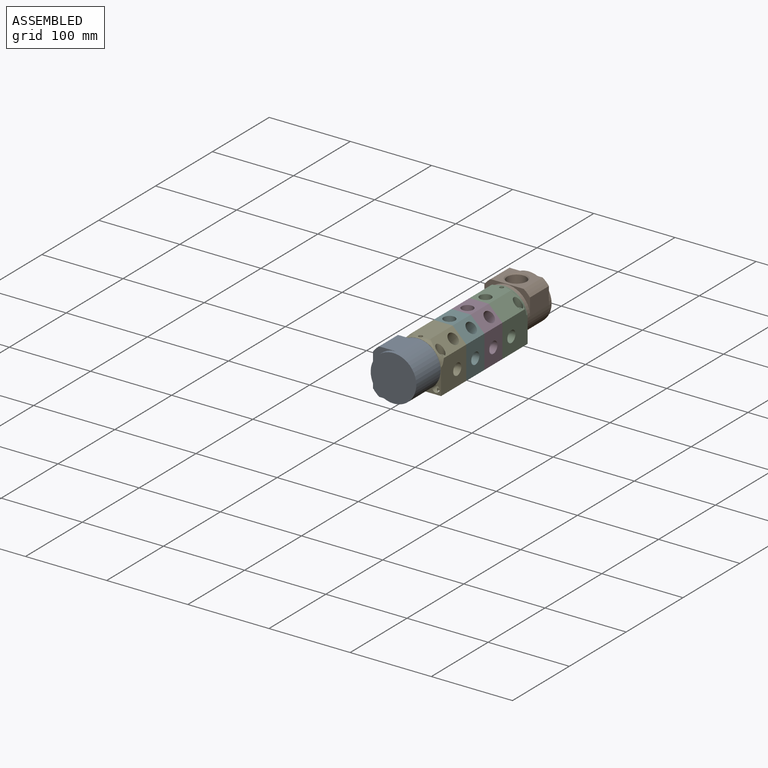
[diagram: assembled view]
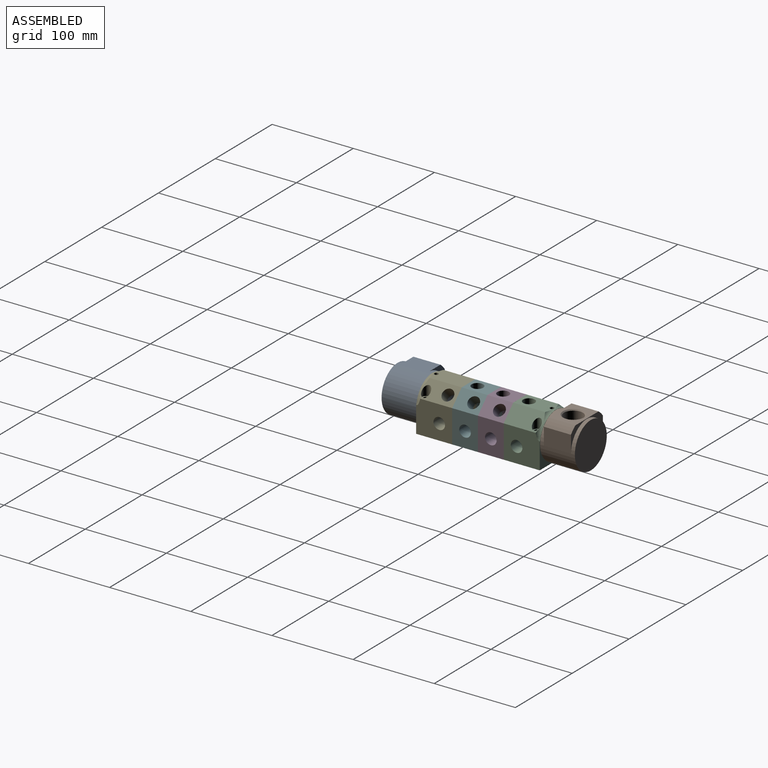
[diagram: assembled view, second angle]
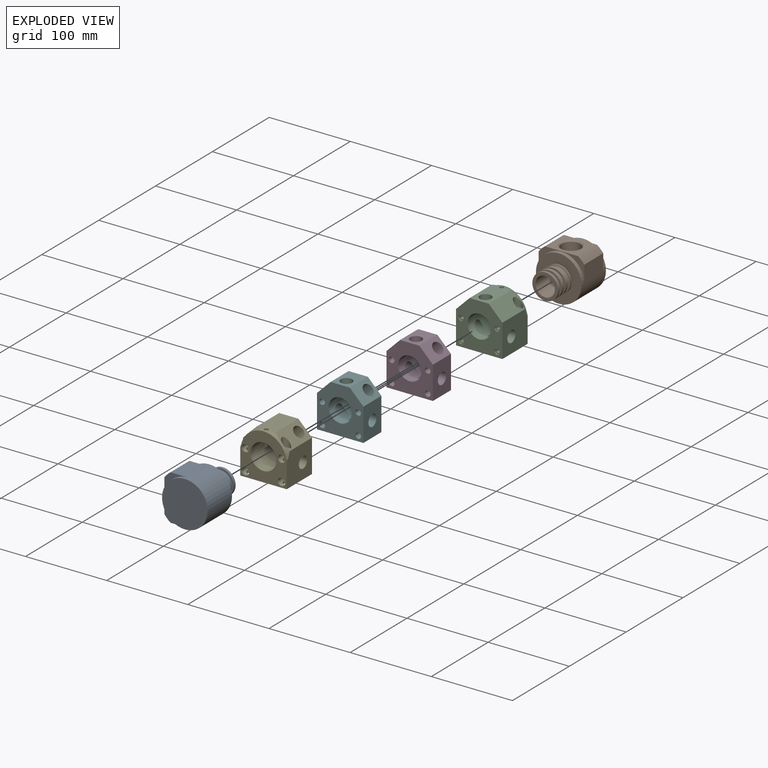
[diagram: exploded view]
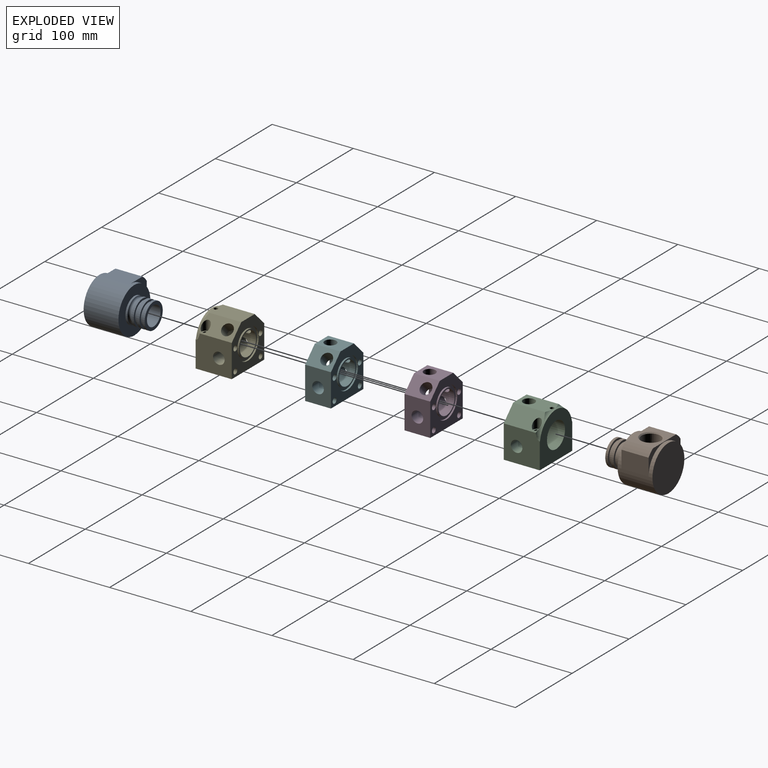
[diagram: exploded view, second angle]
ASSEMBLY  parts=6 mates=5
PART A: 28 faces, bbox 66.7x56.2x56.7 mm
  f0: cylinder r=14.29mm len=28.58mm, axis (0,0,-1), area 1674.9mm2, adj f1,f14,f18
  f1: cylinder r=11.91mm len=37.35mm, axis (1,0,0), area 2591.1mm2, adj f0,f6,f14
  f2: plane 31.75x31.75mm, normal (-1,0,0), area 218.1mm2, adj f5,f11
  f3: cylinder r=15.88mm len=31.75mm, axis (-1,0,0), area 316.7mm2, adj f4,f6
  f4: plane 31.75x31.75mm, normal (1,0,0), area 218.1mm2, adj f3,f5
  f5: cylinder r=13.51mm len=27.03mm, axis (1,0,0), area 269.6mm2, adj f2,f4
  f6: plane 31.75x31.75mm, normal (-1,0,0), area 346.4mm2, adj f1,f3
  f7: cylinder r=15.88mm len=31.75mm, axis (-1,0,0), area 316.7mm2, adj f10,f23
  f8: cylinder r=13.51mm len=27.03mm, axis (1,0,0), area 269.6mm2, adj f9,f10
  f9: plane 31.75x31.75mm, normal (1,0,0), area 218.1mm2, adj f8,f11
  f10: plane 31.75x31.75mm, normal (-1,0,0), area 218.1mm2, adj f7,f8
  f11: cylinder r=15.88mm len=31.75mm, axis (-1,0,0), area 395.9mm2, adj f2,f9
  f12: plane 56.2x56.2mm, normal (-1,0,0), area 1688.7mm2, adj f21,f22
  f13: cone r=14.83mm half-angle=45.9deg, axis (0,0,1), area 252.6mm2, adj f14,f15
  f14: cone r=14.29mm half-angle=1.8deg, axis (0,0,1), area 1577.2mm2, adj f0,f1,f13
  f15: plane 40.85x33.34mm, normal (0,0,1), area 489.8mm2, adj f13,f19,f20,f26,f27
  f16: plane 29.11x0.02mm, normal (0,0,-1), area 0.6mm2, adj f21
  f17: plane 56.2x56.2mm, normal (1,0,0), area 2480.4mm2, adj f21
  f18: plane 28.58x28.58mm, normal (0,0,1), area 641.3mm2, adj f0
  f19: cylinder r=35.12mm len=33.34mm, axis (-1,0,0), area 359.2mm2, adj f15,f24,f26,f27
  f20: cylinder r=35.12mm len=33.34mm, axis (-1,0,0), area 359.2mm2, adj f15,f25,f26,f27
  f21: cylinder r=28.1mm len=56.2mm, axis (-1,0,0), area 4623.9mm2, adj f12,f16,f17,f24,f25,f26,f27
  f22: cylinder r=15.88mm len=31.75mm, axis (-1,0,0), area 237.5mm2, adj f12,f23
  f23: torus R=15.88mm, axis (-1,0,0), area 674.9mm2, adj f7,f22
  f24: plane 33.34x21.07mm, normal (0,-1,0), area 702.6mm2, adj f19,f21,f26,f27
  f25: plane 33.34x21.07mm, normal (0,1,0), area 702.6mm2, adj f20,f21,f26,f27
  f26: plane 56.2x28.58mm, normal (-1,0,0), area 314mm2, adj f15,f19,f20,f21,f24,f25
  f27: plane 56.2x28.58mm, normal (1,0,0), area 314mm2, adj f15,f19,f20,f21,f24,f25
PART B: 33 faces, bbox 66.7x56.2x56.7 mm
  f0: cylinder r=16.67mm len=23.82mm, axis (0,0,-1), area 17.4mm2, adj f1,f10
  f1: cylinder r=11.71mm len=23.42mm, axis (1,0,0), area 544.7mm2, adj f0,f2,f3,f6
  f2: plane 4.13x0.18mm, normal (-1,0,0), area 0.5mm2, adj f1,f6
  f3: plane 4.13x0.18mm, normal (-1,0,0), area 0.5mm2, adj f1,f6
  f4: cylinder r=14.29mm len=28.58mm, axis (0,0,-1), area 199.5mm2, adj f5,f7
  f5: plane 28.58x28.58mm, normal (0,0,1), area 641.3mm2, adj f4
  f6: cylinder r=11.71mm len=39.37mm, axis (0,0,-1), area 2402mm2, adj f1,f2,f3,f7,f32
  f7: plane 28.58x28.58mm, normal (0,0,-1), area 210.6mm2, adj f4,f6
  f8: torus R=15.88mm, axis (-1,0,0), area 674.9mm2, adj f9,f26
  f9: cylinder r=15.88mm len=31.75mm, axis (-1,0,0), area 237.5mm2, adj f8,f21
  f10: cylinder r=11.91mm len=28.58mm, axis (1,0,0), area 2137.7mm2, adj f0,f27
  f11: plane 33.34x21.07mm, normal (0,-1,0), area 702.6mm2, adj f13,f14,f15,f17
  f12: plane 33.34x21.07mm, normal (0,1,0), area 702.6mm2, adj f13,f14,f15,f16
  f13: plane 56.2x28.58mm, normal (-1,0,0), area 314mm2, adj f11,f12,f14,f16,f17,f20
  f14: cylinder r=28.1mm len=56.2mm, axis (-1,0,0), area 4623.9mm2, adj f11,f12,f13,f15,f18,f19,f21
  f15: plane 56.2x28.58mm, normal (1,0,0), area 314mm2, adj f11,f12,f14,f16,f17,f20
  f16: cylinder r=35.12mm len=33.34mm, axis (-1,0,0), area 359.2mm2, adj f12,f13,f15,f20
  f17: cylinder r=35.12mm len=33.34mm, axis (-1,0,0), area 359.2mm2, adj f11,f13,f15,f20
  f18: plane 56.2x56.2mm, normal (1,0,0), area 2480.4mm2, adj f14
  f19: plane 29.11x0.02mm, normal (0,0,-1), area 0.6mm2, adj f14
  f20: plane 40.85x33.34mm, normal (0,0,1), area 832.5mm2, adj f13,f15,f16,f17,f32
  f21: plane 56.2x56.2mm, normal (-1,0,0), area 1688.7mm2, adj f9,f14
  f22: cylinder r=15.88mm len=31.75mm, axis (-1,0,0), area 395.9mm2, adj f24,f28
  f23: plane 31.75x31.75mm, normal (-1,0,0), area 218.1mm2, adj f25,f26
  f24: plane 31.75x31.75mm, normal (1,0,0), area 218.1mm2, adj f22,f25
  f25: cylinder r=13.51mm len=27.03mm, axis (1,0,0), area 269.6mm2, adj f23,f24
  f26: cylinder r=15.88mm len=31.75mm, axis (-1,0,0), area 316.7mm2, adj f8,f23
  f27: plane 31.75x31.75mm, normal (-1,0,0), area 346.4mm2, adj f10,f31
  f28: plane 31.75x31.75mm, normal (-1,0,0), area 218.1mm2, adj f22,f29
  f29: cylinder r=13.51mm len=27.03mm, axis (1,0,0), area 269.6mm2, adj f28,f30
  f30: plane 31.75x31.75mm, normal (1,0,0), area 218.1mm2, adj f29,f31
  f31: cylinder r=15.88mm len=31.75mm, axis (-1,0,0), area 316.7mm2, adj f27,f30
  f32: cone r=11.71mm half-angle=45deg, axis (0,0,1), area 139.3mm2, adj f6,f20
PART C: 43 faces, bbox 75.4x46.6x68.3 mm
  f0: cylinder r=15.88mm len=31.75mm, axis (0,1,0), area 2380.4mm2, adj f1,f2,f11,f12,f13,f14,f15,f17
  f1: cone r=0mm half-angle=59deg, axis (0,1,0), area 9.7mm2, adj f0,f3,f13,f14
  f2: cone r=0mm half-angle=59deg, axis (0,1,0), area 99.6mm2, adj f0,f3,f12,f15
  f3: cylinder r=14.29mm len=28.58mm, axis (0,-1,0), area 1189.8mm2, adj f1,f2,f10,f12,f13,f14,f15,f16
  f4: plane 45.68x41.64mm, normal (-1,0,0), area 1606.1mm2, adj f5,f9,f10,f11,f15,f35,f36
  f5: plane 57.15x44.45mm, normal (0,0,-1), area 2468.6mm2, adj f4,f6,f10,f11,f37,f41
  f6: plane 45.68x41.64mm, normal (1,0,0), area 1606.1mm2, adj f5,f7,f10,f11,f12,f34,f35
  f7: plane 44.84x18.91mm, normal (0.71,0,0.71), area 857mm2, adj f6,f8,f10,f35,f40
  f8: plane 42.68x23.69mm, normal (0,0,1), area 795.5mm2, adj f7,f9,f10,f16,f17,f35
  f9: plane 42.68x16.74mm, normal (-0.71,0,0.71), area 857mm2, adj f4,f8,f10,f35,f39
  f10: plane 57.15x57.15mm, normal (0,-1,0), area 2206.6mm2, adj f3,f4,f5,f6,f7,f8,f9,f20
  f11: plane 57.15x56.9mm, normal (0,1,0), area 2104.5mm2, adj f0,f4,f5,f6,f34,f35,f36
  f12: cylinder r=7.14mm len=25.4mm, axis (1,0,0), area 839.4mm2, adj f0,f2,f3,f6,f13
  f13: cone r=0mm half-angle=59deg, axis (1,0,0), area 19.9mm2, adj f0,f1,f3,f12
  f14: cone r=0mm half-angle=59deg, axis (-1,0,0), area 19.9mm2, adj f0,f1,f3,f15
  f15: cylinder r=7.14mm len=25.4mm, axis (-1,0,0), area 839.5mm2, adj f0,f2,f3,f4,f14
  f16: cylinder r=7.14mm len=16.2mm, axis (0,0,1), area 682.8mm2, adj f3,f8
  f17: cylinder r=2.5mm len=12.9mm, axis (0,0,1), area 200.3mm2, adj f0,f8
  f18: cylinder r=2.02mm len=16.19mm, axis (0,-1,0), area 205.4mm2, adj f19,f21
  f19: plane 6.63x6.63mm, normal (0,-1,0), area 21.7mm2, adj f18,f20
  f20: cylinder r=3.31mm len=6.63mm, axis (0,-1,0), area 33.1mm2, adj f10,f19
  f21: cone r=0mm half-angle=59deg, axis (0,-1,0), area 14.9mm2, adj f18
  f22: cylinder r=2.02mm len=16.19mm, axis (0,-1,0), area 205.4mm2, adj f23,f25
  f23: plane 6.63x6.63mm, normal (0,-1,0), area 21.7mm2, adj f22,f24
  f24: cylinder r=3.31mm len=6.63mm, axis (0,-1,0), area 33.1mm2, adj f10,f23
  f25: cone r=0mm half-angle=59deg, axis (0,-1,0), area 14.9mm2, adj f22
  f26: cylinder r=2.02mm len=16.19mm, axis (0,-1,0), area 205.4mm2, adj f27,f29
  f27: plane 6.63x6.63mm, normal (0,-1,0), area 21.7mm2, adj f26,f28
  f28: cylinder r=3.31mm len=6.63mm, axis (0,-1,0), area 33.1mm2, adj f10,f27
  f29: cone r=0mm half-angle=59deg, axis (0,-1,0), area 14.9mm2, adj f26
  f30: cylinder r=2.02mm len=16.19mm, axis (0,-1,0), area 205.4mm2, adj f31,f33
  f31: plane 6.63x6.63mm, normal (0,-1,0), area 21.7mm2, adj f30,f32
  f32: cylinder r=3.31mm len=6.63mm, axis (0,-1,0), area 33.1mm2, adj f10,f31
  f33: cone r=0mm half-angle=59deg, axis (0,-1,0), area 14.9mm2, adj f30
  f34: torus R=18.8mm, axis (0,-1,0), area 4.9mm2, adj f6,f11,f35
  f35: torus R=34.67mm, axis (0,1,0), area 281mm2, adj f4,f6,f7,f8,f9,f11,f34,f36
  f36: torus R=18.8mm, axis (0,-1,0), area 4.9mm2, adj f4,f11,f35
  f37: cylinder r=3.38mm len=39.37mm, axis (0,0,1), area 835.7mm2, adj f5,f38
  f38: plane 10.31x10.31mm, normal (0,0,1), area 47.7mm2, adj f37,f39
  f39: cylinder r=5.16mm len=12.55mm, axis (0,0,1), area 239.5mm2, adj f9,f38
  f40: cylinder r=5.16mm len=12.55mm, axis (0,0,1), area 239.5mm2, adj f7,f42
  f41: cylinder r=3.38mm len=39.37mm, axis (0,0,1), area 835.7mm2, adj f5,f42
  f42: plane 10.31x10.31mm, normal (0,0,1), area 47.7mm2, adj f40,f41
PART D: 24 faces, bbox 57.2x31.8x57.2 mm
  f0: plane 31.75x31.75mm, normal (0,1,0), area 150.4mm2, adj f1,f21
  f1: cylinder r=14.29mm len=31.75mm, axis (0,-1,0), area 1920.9mm2, adj f0,f8,f14,f15,f16,f17,f18,f19
  f2: plane 40.41x31.75mm, normal (-1,0,0), area 1123mm2, adj f3,f7,f8,f9,f17
  f3: plane 57.15x31.75mm, normal (0,0,-1), area 1814.5mm2, adj f2,f4,f8,f9
  f4: plane 40.41x31.75mm, normal (1,0,0), area 1123mm2, adj f3,f5,f8,f9,f14
  f5: plane 31.75x16.74mm, normal (0.71,0,0.71), area 591.5mm2, adj f4,f6,f8,f9,f18
  f6: plane 31.75x23.67mm, normal (0,0,1), area 591.6mm2, adj f5,f7,f8,f9,f19
  f7: plane 31.75x16.74mm, normal (-0.71,0,0.71), area 591.5mm2, adj f2,f6,f8,f9,f20
  f8: plane 57.15x57.15mm, normal (0,-1,0), area 2201.2mm2, adj f1,f2,f3,f4,f5,f6,f7,f10
  f9: plane 57.15x57.15mm, normal (0,1,0), area 1717.6mm2, adj f2,f3,f4,f5,f6,f7,f10,f11
  f10: cylinder r=3.38mm len=31.75mm, axis (0,-1,0), area 673.9mm2, adj f8,f9
  f11: cylinder r=3.38mm len=31.75mm, axis (0,-1,0), area 673.9mm2, adj f8,f9
  f12: cylinder r=3.38mm len=31.75mm, axis (0,-1,0), area 673.9mm2, adj f8,f9
  f13: cylinder r=3.38mm len=31.75mm, axis (0,-1,0), area 673.9mm2, adj f8,f9
  f14: cylinder r=7.14mm len=25.4mm, axis (1,0,0), area 872.3mm2, adj f1,f4,f15
  f15: cone r=0mm half-angle=59deg, axis (1,0,0), area 22.7mm2, adj f1,f14
  f16: cone r=0mm half-angle=59deg, axis (-1,0,0), area 22.7mm2, adj f1,f17
  f17: cylinder r=7.14mm len=25.4mm, axis (-1,0,0), area 872.3mm2, adj f1,f2,f16
  f18: cylinder r=7.14mm len=21.55mm, axis (0.71,0,0.71), area 682.8mm2, adj f1,f5
  f19: cylinder r=7.14mm len=16.2mm, axis (0,0,1), area 682.8mm2, adj f1,f6
  f20: cylinder r=7.14mm len=21.55mm, axis (-0.71,0,0.71), area 682.8mm2, adj f1,f7
  f21: cylinder r=15.88mm len=31.75mm, axis (0,1,0), area 202.7mm2, adj f0,f23
  f22: cylinder r=18.92mm len=37.85mm, axis (0,1,0), area 241.6mm2, adj f9,f23
  f23: plane 37.85x37.85mm, normal (0,1,0), area 333.2mm2, adj f21,f22
PART E: 56 faces, bbox 75.4x51.1x68.3 mm
  f0: plane 31.75x31.75mm, normal (0,1,0), area 150.4mm2, adj f12,f53
  f1: cylinder r=2.55mm len=5.11mm, axis (0,-1,0), area 50.9mm2, adj f35,f51
  f2: cylinder r=2.55mm len=5.11mm, axis (0,-1,0), area 50.9mm2, adj f38,f49
  f3: cylinder r=2.55mm len=5.11mm, axis (0,-1,0), area 50.9mm2, adj f40,f47
  f4: cylinder r=2.55mm len=5.11mm, axis (0,-1,0), area 50.9mm2, adj f42,f45
  f5: cylinder r=3.38mm len=6.76mm, axis (0,0,1), area 75.6mm2, adj f22,f43
  f6: cylinder r=3.38mm len=6.76mm, axis (0,0,1), area 57.2mm2, adj f14,f41
  f7: cylinder r=3.38mm len=6.76mm, axis (0,0,1), area 57.2mm2, adj f14,f39
  f8: cylinder r=3.38mm len=6.76mm, axis (0,0,1), area 75.6mm2, adj f23,f36
  f9: cylinder r=15.88mm len=31.75mm, axis (0,-1,0), area 2380.3mm2, adj f10,f11,f20,f28,f29,f30,f31,f32
  f10: cone r=0mm half-angle=59deg, axis (0,-1,0), area 9.7mm2, adj f9,f12,f30,f31
  f11: cone r=0mm half-angle=59deg, axis (0,-1,0), area 99.6mm2, adj f9,f12,f29,f32
  f12: cylinder r=14.29mm len=28.58mm, axis (0,1,0), area 1022.8mm2, adj f0,f10,f11,f29,f30,f31,f32,f33
  f13: plane 45.68x41.64mm, normal (-1,0,0), area 1606.1mm2, adj f14,f18,f19,f20,f25,f26,f32
  f14: plane 57.15x44.45mm, normal (0,0,-1), area 2468.6mm2, adj f6,f7,f13,f15,f19,f20
  f15: plane 45.68x41.64mm, normal (1,0,0), area 1606.1mm2, adj f14,f16,f19,f20,f25,f27,f29
  f16: plane 44.84x18.91mm, normal (0.71,0,0.71), area 696.9mm2, adj f15,f17,f19,f24,f25,f33
  f17: plane 42.68x23.69mm, normal (0,0,1), area 955.5mm2, adj f16,f18,f19,f25,f28
  f18: plane 42.68x16.74mm, normal (-0.71,0,0.71), area 696.9mm2, adj f13,f17,f19,f21,f25,f34
  f19: plane 57.15x57.15mm, normal (0,1,0), area 1722.9mm2, adj f13,f14,f15,f16,f17,f18,f46,f48
  f20: plane 57.15x56.9mm, normal (0,-1,0), area 1859mm2, adj f9,f13,f14,f15,f25,f26,f27,f36
  f21: cylinder r=5.16mm len=12.55mm, axis (0,0,1), area 239.5mm2, adj f18,f22
  f22: plane 10.31x10.31mm, normal (0,0,1), area 47.7mm2, adj f5,f21
  f23: plane 10.31x10.31mm, normal (0,0,1), area 47.7mm2, adj f8,f24
  f24: cylinder r=5.16mm len=12.55mm, axis (0,0,1), area 239.5mm2, adj f16,f23
  f25: torus R=34.67mm, axis (0,1,0), area 281mm2, adj f13,f15,f16,f17,f18,f20,f26,f27
  f26: torus R=18.8mm, axis (0,-1,0), area 4.9mm2, adj f13,f20,f25
  f27: torus R=18.8mm, axis (0,-1,0), area 4.9mm2, adj f15,f20,f25
  f28: cylinder r=2.5mm len=12.9mm, axis (0,0,1), area 202.6mm2, adj f9,f17
  f29: cylinder r=7.14mm len=25.4mm, axis (1,0,0), area 839.4mm2, adj f9,f11,f12,f15,f30
  f30: cone r=0mm half-angle=59deg, axis (1,0,0), area 19.9mm2, adj f9,f10,f12,f29
  f31: cone r=0mm half-angle=59deg, axis (-1,0,0), area 19.9mm2, adj f9,f10,f12,f32
  f32: cylinder r=7.14mm len=25.4mm, axis (-1,0,0), area 839.5mm2, adj f9,f11,f12,f13,f31
  f33: cylinder r=7.14mm len=21.55mm, axis (0.71,0,0.71), area 682.8mm2, adj f12,f16
  f34: cylinder r=7.14mm len=21.55mm, axis (-0.71,0,0.71), area 682.8mm2, adj f12,f18
  f35: plane 8.84x8.84mm, normal (0,-1,0), area 40.9mm2, adj f1,f36
  f36: cylinder r=4.42mm len=22.86mm, axis (0,-1,0), area 562.8mm2, adj f8,f20,f35,f37
  f37: cylinder r=3.38mm len=20.08mm, axis (0,0,1), area 391.6mm2, adj f36,f39
  f38: plane 8.84x8.84mm, normal (0,-1,0), area 40.9mm2, adj f2,f39
  f39: cylinder r=4.42mm len=22.86mm, axis (0,-1,0), area 562.8mm2, adj f7,f20,f37,f38
  f40: plane 8.84x8.84mm, normal (0,-1,0), area 40.9mm2, adj f3,f41
  f41: cylinder r=4.42mm len=22.86mm, axis (0,-1,0), area 562.8mm2, adj f6,f20,f40,f44
  f42: plane 8.84x8.84mm, normal (0,-1,0), area 40.9mm2, adj f4,f43
  f43: cylinder r=4.42mm len=22.86mm, axis (0,-1,0), area 562.8mm2, adj f5,f20,f42,f44
  f44: cylinder r=3.38mm len=20.08mm, axis (0,0,1), area 391.6mm2, adj f41,f43
  f45: plane 6.63x6.63mm, normal (0,1,0), area 14mm2, adj f4,f46
  f46: cylinder r=3.31mm len=18.42mm, axis (0,1,0), area 383.5mm2, adj f19,f45
  f47: plane 6.63x6.63mm, normal (0,1,0), area 14mm2, adj f3,f48
  f48: cylinder r=3.31mm len=18.42mm, axis (0,1,0), area 383.5mm2, adj f19,f47
  f49: plane 6.63x6.63mm, normal (0,1,0), area 14mm2, adj f2,f50
  f50: cylinder r=3.31mm len=18.42mm, axis (0,1,0), area 383.5mm2, adj f19,f49
  f51: plane 6.63x6.63mm, normal (0,1,0), area 14mm2, adj f1,f52
  f52: cylinder r=3.31mm len=18.42mm, axis (0,1,0), area 383.5mm2, adj f19,f51
  f53: cylinder r=15.88mm len=31.75mm, axis (0,1,0), area 202.7mm2, adj f0,f55
  f54: cylinder r=18.92mm len=37.85mm, axis (0,1,0), area 241.6mm2, adj f19,f55
  f55: plane 37.85x37.85mm, normal (0,1,0), area 333.2mm2, adj f53,f54
PART F: same geometry as D
PLACE A rot(axis=(0.58,-0.58,-0.58),120deg) t=(-0.24,-128.59,0)mm
PLACE B rot(axis=(0,0,1),90deg) t=(0,-23.81,0.24)mm
PLACE C at identity fixed
PLACE D t=(0,-44.45,0)mm
PLACE E t=(0,-152.4,0)mm
PLACE F t=(0,-76.2,0)mm
MATE revolute B.f16 <-> C.f0  axis (0,-1,0) through (0,0,0)mm
MATE fastened E.f9 <-> F.f1  axis (0,1,0) through (0,-107.95,0)mm
MATE revolute A.f20 <-> E.f9  axis (0,1,0) through (0,-152.4,0)mm
MATE fastened C.f0 <-> D.f1  axis (0,-1,0) through (0,-44.45,0)mm
MATE fastened D.f1 <-> F.f1  axis (0,-1,0) through (0,-76.2,0)mm
